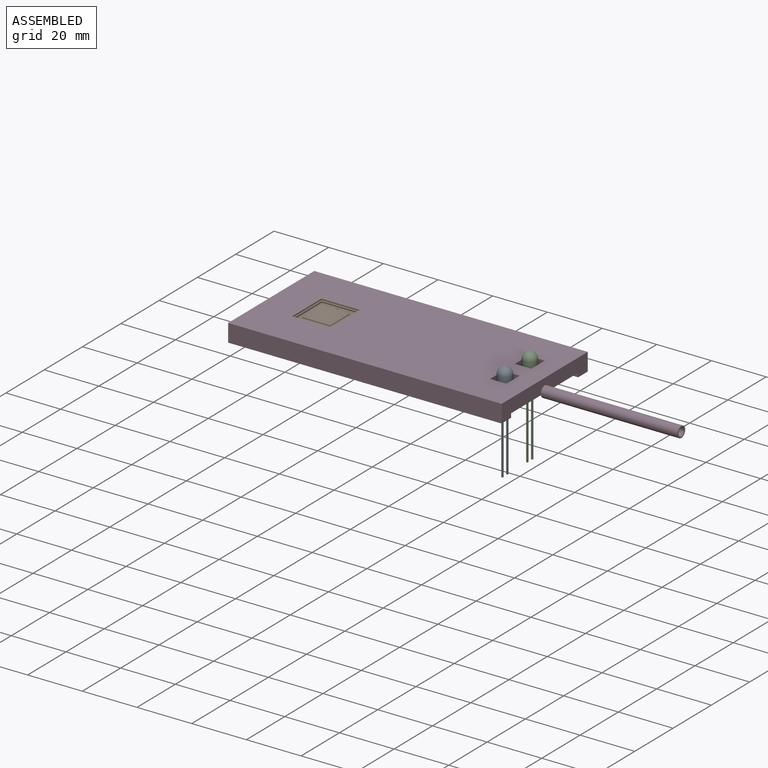
[diagram: assembled view]
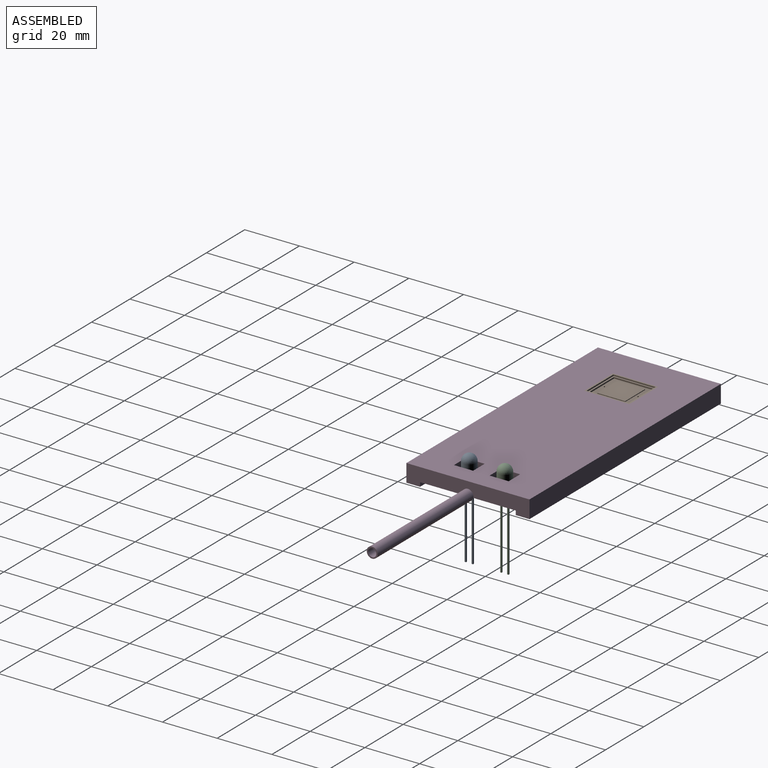
[diagram: assembled view, second angle]
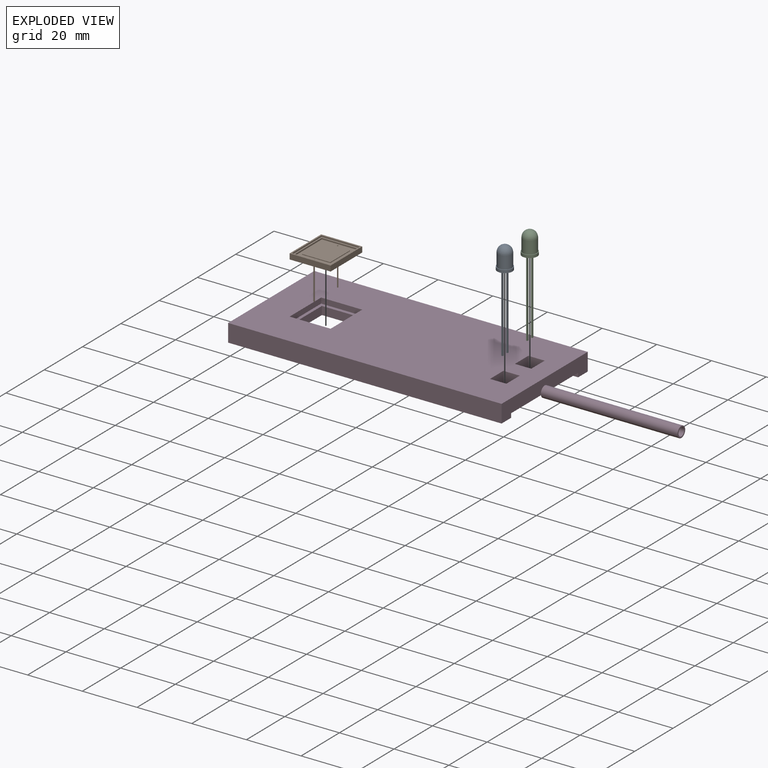
[diagram: exploded view]
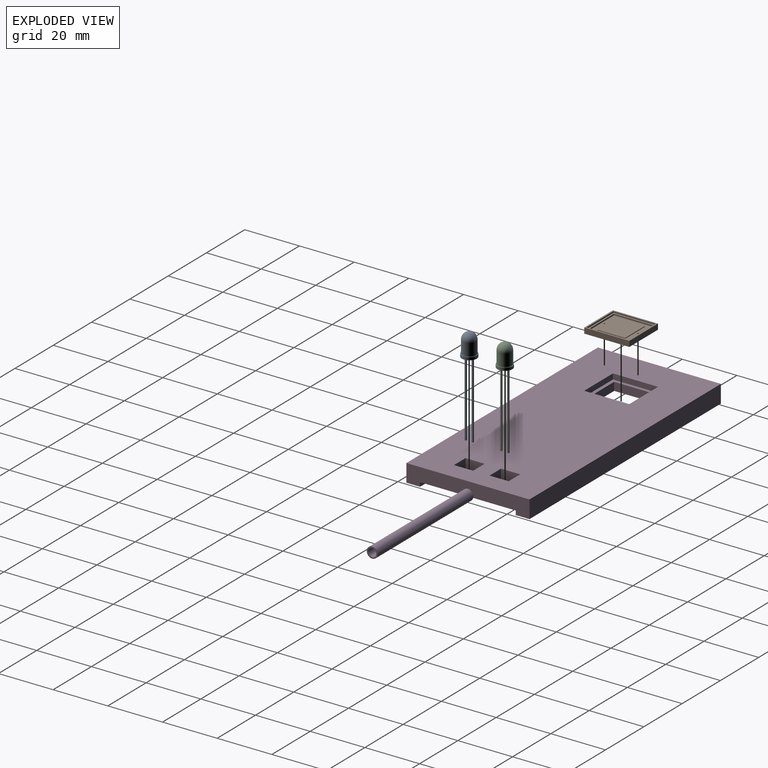
[diagram: exploded view, second angle]
ASSEMBLY  parts=4 mates=3
PART A: 15 faces, bbox 5.5x36.2x5.5 mm
  f0: plane 5.5x5.5mm, normal (0,1,0), area 23.3mm2, adj f1,f5,f6,f7,f8,f10,f11,f12
  f1: cylinder r=2.75mm len=5.5mm, axis (0,1,0), area 18.1mm2, adj f0,f2
  f2: plane 5.5x5.5mm, normal (0,-1,0), area 4.1mm2, adj f1,f3
  f3: cylinder r=2.5mm len=5mm, axis (0,1,0), area 73mm2, adj f2,f4
  f4: sphere r=2.5mm, area 39.3mm2, adj f3
  f5: plane 28x0.5mm, normal (1,0,0), area 14mm2, adj f0,f6,f8,f9
  f6: plane 28x0.5mm, normal (0,0,-1), area 14mm2, adj f0,f5,f7,f9
  f7: plane 28x0.5mm, normal (-1,0,0), area 14mm2, adj f0,f6,f8,f9
  f8: plane 28x0.5mm, normal (0,0,1), area 14mm2, adj f0,f5,f7,f9
  f9: plane 0.5x0.5mm, normal (0,1,0), area 0.2mm2, adj f5,f6,f7,f8
  f10: plane 28x0.5mm, normal (0,0,1), area 14mm2, adj f0,f11,f13,f14
  f11: plane 28x0.5mm, normal (1,0,0), area 14mm2, adj f0,f10,f12,f14
  f12: plane 28x0.5mm, normal (0,0,-1), area 14mm2, adj f0,f11,f13,f14
  f13: plane 28x0.5mm, normal (-1,0,0), area 14mm2, adj f0,f10,f12,f14
  f14: plane 0.5x0.5mm, normal (0,1,0), area 0.2mm2, adj f10,f11,f12,f13
PART B: 29 faces, bbox 15x14.7x16.5 mm
  f0: plane 14.3x13mm, normal (0,1,0), area 79.8mm2, adj f12,f13,f14,f15,f16,f17,f18,f19
  f1: plane 16.5x2mm, normal (1,0,0), area 33mm2, adj f2,f4,f5,f6
  f2: plane 15x2mm, normal (0,0,-1), area 30mm2, adj f1,f3,f5,f6
  f3: plane 16.5x2mm, normal (-1,0,0), area 33mm2, adj f2,f4,f5,f6
  f4: plane 15x2mm, normal (0,0,1), area 30mm2, adj f1,f3,f5,f6
  f5: plane 16.5x15mm, normal (0,1,0), area 31.9mm2, adj f1,f2,f3,f4,f7,f8,f9,f10
  f6: plane 16.5x15mm, normal (0,-1,0), area 247.2mm2, adj f1,f2,f3,f4,f22,f26
  f7: plane 15.4x0.5mm, normal (-1,0,0), area 7.7mm2, adj f5,f8,f10,f11
  f8: plane 14x0.5mm, normal (0,0,-1), area 7mm2, adj f5,f7,f9,f11
  f9: plane 15.4x0.5mm, normal (1,0,0), area 7.7mm2, adj f5,f8,f10,f11
  f10: plane 14x0.5mm, normal (0,0,1), area 7mm2, adj f5,f7,f9,f11
  f11: plane 15.4x14mm, normal (0,1,0), area 29.7mm2, adj f7,f8,f9,f10,f12,f13,f14,f15
  f12: plane 14.3x0.5mm, normal (-1,0,0), area 7.2mm2, adj f0,f11,f13,f15
  f13: plane 13x0.5mm, normal (0,0,-1), area 6.5mm2, adj f0,f11,f12,f14
  f14: plane 14.3x0.5mm, normal (1,0,0), area 7.2mm2, adj f0,f11,f13,f15
  f15: plane 13x0.5mm, normal (0,0,1), area 6.5mm2, adj f0,f11,f12,f14
  f16: plane 10.21x0.25mm, normal (1,0,0), area 2.6mm2, adj f0,f17,f19,f20
  f17: plane 10.36x0.25mm, normal (0,0,-1), area 2.6mm2, adj f0,f16,f18,f20
  f18: plane 10.21x0.25mm, normal (-1,0,0), area 2.6mm2, adj f0,f17,f19,f20
  f19: plane 10.36x0.25mm, normal (0,0,1), area 2.6mm2, adj f0,f16,f18,f20
  f20: plane 10.36x10.21mm, normal (0,1,0), area 105.8mm2, adj f16,f17,f18,f19
  f21: plane 0.43x0.43mm, normal (0,-1,0), area 0.1mm2, adj f22
  f22: cylinder r=0.21mm len=12.7mm, axis (0,-1,0), area 17.2mm2, adj f6,f21
  f23: cylinder r=0.21mm len=0.43mm, axis (0,-1,0), area 0.3mm2, adj f0,f24
  f24: plane 0.43x0.43mm, normal (0,1,0), area 0.1mm2, adj f23
  f25: plane 0.43x0.43mm, normal (0,-1,0), area 0.1mm2, adj f26
  f26: cylinder r=0.21mm len=12.7mm, axis (0,-1,0), area 17.2mm2, adj f6,f25
  f27: cylinder r=0.21mm len=0.43mm, axis (0,-1,0), area 0.3mm2, adj f0,f28
  f28: plane 0.43x0.43mm, normal (0,1,0), area 0.1mm2, adj f27
PART C: same geometry as A
PART D: 41 faces, bbox 150x6.5x45 mm
  f0: plane 100x45mm, normal (0,-1,0), area 4168.5mm2, adj f1,f2,f3,f4,f10,f11,f12,f13
  f1: plane 45x6.5mm, normal (-1,0,0), area 292.5mm2, adj f0,f2,f4,f5
  f2: plane 100x6.5mm, normal (0,0,1), area 650mm2, adj f0,f1,f3,f5
  f3: plane 45x6.5mm, normal (1,0,0), area 231.7mm2, adj f0,f2,f4,f5,f7,f8,f9,f40
  f4: plane 100x6.5mm, normal (0,0,-1), area 650mm2, adj f0,f1,f3,f5
  f5: plane 100x45mm, normal (0,1,0), area 1175mm2, adj f1,f2,f3,f4,f6,f7,f8
  f6: plane 35x1.5mm, normal (1,0,0), area 52.5mm2, adj f5,f7,f8,f9
  f7: plane 95x1.5mm, normal (0,0,-1), area 142.5mm2, adj f3,f5,f6,f9
  f8: plane 95x1.5mm, normal (0,0,1), area 142.5mm2, adj f3,f5,f6,f9
  f9: plane 95x35mm, normal (0,1,0), area 2911.1mm2, adj f3,f6,f7,f8,f25,f26,f27,f28
  f10: plane 15x2mm, normal (0,0,1), area 30mm2, adj f0,f11,f13,f14
  f11: plane 16.5x2mm, normal (1,0,0), area 33mm2, adj f0,f10,f12,f14
  f12: plane 15x2mm, normal (0,0,-1), area 30mm2, adj f0,f11,f13,f14
  f13: plane 16.5x2mm, normal (-1,0,0), area 33mm2, adj f0,f10,f12,f14
  f14: plane 16.5x15mm, normal (0,-1,0), area 69.3mm2, adj f10,f11,f12,f13,f25,f26,f27,f28
  f15: plane 7x4.5mm, normal (1,0,0), area 31.5mm2, adj f0,f16,f18,f19
  f16: plane 6x4.5mm, normal (0,0,-1), area 27mm2, adj f0,f15,f17,f19
  f17: plane 7x4.5mm, normal (-1,0,0), area 31.5mm2, adj f0,f16,f18,f19
  f18: plane 6x4.5mm, normal (0,0,1), area 27mm2, adj f0,f15,f17,f19
  f19: plane 7x6mm, normal (0,-1,0), area 28.3mm2, adj f15,f16,f17,f18,f33,f34,f35,f36
  f20: plane 7x4.5mm, normal (-1,0,0), area 31.5mm2, adj f0,f21,f23,f24
  f21: plane 6x4.5mm, normal (0,0,1), area 27mm2, adj f0,f20,f22,f24
  f22: plane 7x4.5mm, normal (1,0,0), area 31.5mm2, adj f0,f21,f23,f24
  f23: plane 6x4.5mm, normal (0,0,-1), area 27mm2, adj f0,f20,f22,f24
  f24: plane 7x6mm, normal (0,-1,0), area 28.3mm2, adj f20,f21,f22,f23,f29,f30,f31,f32
  f25: plane 14x3mm, normal (-1,0,0), area 37mm2, adj f9,f14,f26,f28,f37
  f26: plane 12.73x3mm, normal (0,0,1), area 38.2mm2, adj f9,f14,f25,f27
  f27: plane 14x3mm, normal (1,0,0), area 42mm2, adj f9,f14,f26,f28
  f28: plane 12.73x3mm, normal (0,0,-1), area 38.2mm2, adj f9,f14,f25,f27
  f29: plane 4x0.5mm, normal (-1,0,0), area 2mm2, adj f9,f24,f30,f32
  f30: plane 3.43x0.5mm, normal (0,0,1), area 1.7mm2, adj f9,f24,f29,f31
  f31: plane 4x0.5mm, normal (1,0,0), area 2mm2, adj f9,f24,f30,f32
  f32: plane 3.43x0.5mm, normal (0,0,-1), area 1.7mm2, adj f9,f24,f29,f31
  f33: plane 3.43x0.5mm, normal (0,0,-1), area 1.7mm2, adj f9,f19,f34,f36
  f34: plane 4x0.5mm, normal (-1,0,0), area 2mm2, adj f9,f19,f33,f35
  f35: plane 3.43x0.5mm, normal (0,0,1), area 1.7mm2, adj f9,f19,f34,f36
  f36: plane 4x0.5mm, normal (1,0,0), area 2mm2, adj f9,f19,f33,f35
  f37: cylinder r=1.5mm len=123.64mm, axis (1,0,0), area 893.3mm2, adj f9,f25,f38,f39
  f38: plane 4x4mm, normal (1,0,0), area 5.5mm2, adj f37,f40
  f39: plane 3.87x1.5mm, normal (-1,0,0), area 2.2mm2, adj f9,f37,f40
  f40: cylinder r=2mm len=50mm, axis (-1,0,0), area 628.3mm2, adj f3,f38,f39
PLACE A rot(axis=(0,-0.71,0.71),180deg) t=(39.02,-6.5,-4.5)mm
PLACE B rot(axis=(1,0,0),90deg) t=(-30.98,0,-2)mm
PLACE C rot(axis=(-1,0,0),90deg) t=(39.02,6.5,-4.5)mm
PLACE D rot(axis=(-1,0,0),90deg) t=(-0.98,0,0)mm
MATE fastened C.f1 <-> D.f24  axis (0,0,-1) through (39.02,6.5,-4.5)mm
MATE fastened A.f1 <-> D.f19  axis (0,0,-1) through (39.02,-6.5,-4.5)mm
MATE fastened B.f6 <-> D.f14  axis (0,0,-1) through (-30.98,0,-2)mm
